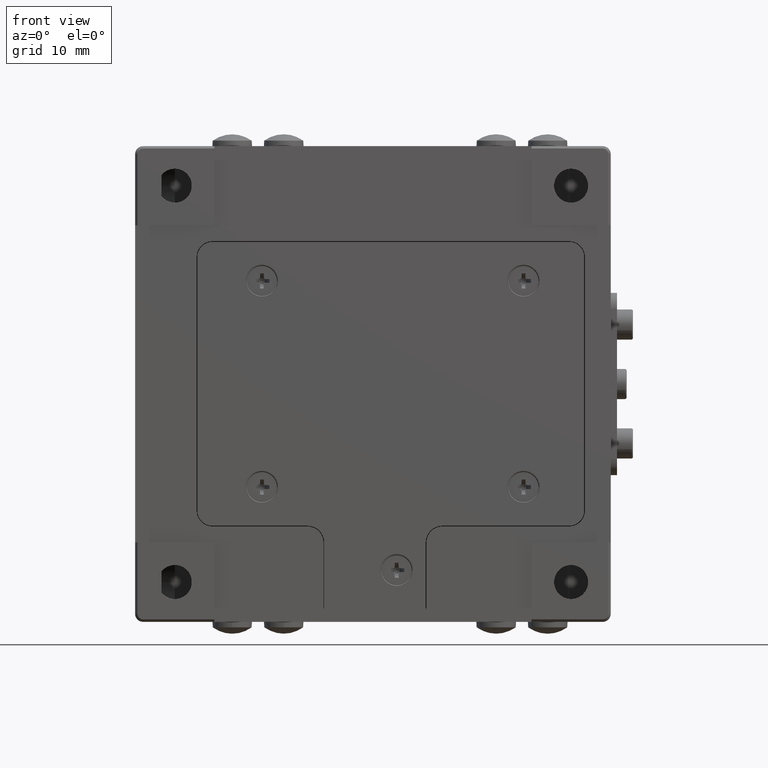
[diagram: clean part render]
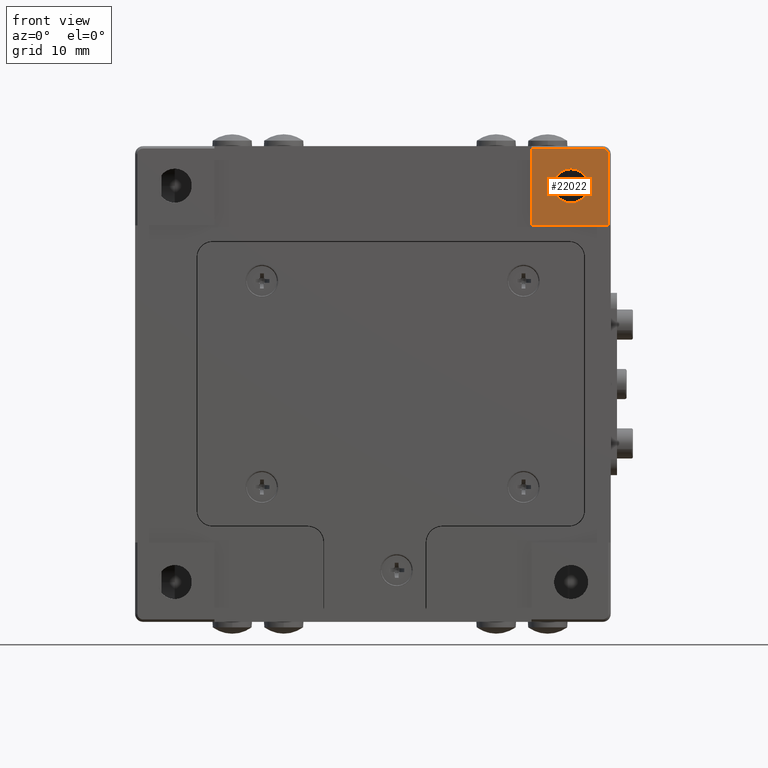
[diagram: same view with one face highlighted and labeled with its STEP entity id]
A machine part, front view. The second image highlights one B-rep face of the part: STEP entity #22022.
In plain terms, the highlighted planar face has unit normal (0, -1, 0).
Its self-contained STEP definition (entity closure, byte-faithful):
#39 = DIRECTION ( 'NONE',  ( 0.000000000000000000, 1.000000000000000000, 0.000000000000000000 ) ) ;
#133 = AXIS2_PLACEMENT_3D ( 'NONE', #21618, #13907, #17339 ) ;
#566 = AXIS2_PLACEMENT_3D ( 'NONE', #21374, #39, #21233 ) ;
#635 = AXIS2_PLACEMENT_3D ( 'NONE', #21621, #15952, #18199 ) ;
#763 = ORIENTED_EDGE ( 'NONE', *, *, #2516, .T. ) ;
#1528 = VERTEX_POINT ( 'NONE', #21754 ) ;
#1769 = VECTOR ( 'NONE', #20127, 1000.000000000000000 ) ;
#2516 = EDGE_CURVE ( 'NONE', #16499, #16038, #10389, .T. ) ;
#4974 = DIRECTION ( 'NONE',  ( 0.000000000000000000, 0.000000000000000000, -1.000000000000000000 ) ) ;
#5205 = ORIENTED_EDGE ( 'NONE', *, *, #22896, .T. ) ;
#5316 = VERTEX_POINT ( 'NONE', #14331 ) ;
#5505 = VECTOR ( 'NONE', #22134, 1000.000000000000000 ) ;
#6233 = CARTESIAN_POINT ( 'NONE',  ( 50.00000000000000000, -0.2999999999999999889, -0.2999999999999999889 ) ) ;
#7267 = CARTESIAN_POINT ( 'NONE',  ( 50.00000000000000000, -0.2999999999999999889, -1.224646799147351876E-15 ) ) ;
#7781 = EDGE_LOOP ( 'NONE', ( #20167, #17338, #763, #10455, #5205 ) ) ;
#8123 = PLANE ( 'NONE',  #635 ) ;
#8358 = AXIS2_PLACEMENT_3D ( 'NONE', #16854, #22543, #24818 ) ;
#9408 = LINE ( 'NONE', #7267, #13568 ) ;
#10389 = CIRCLE ( 'NONE', #8358, 0.7000000000000000666 ) ;
#10455 = ORIENTED_EDGE ( 'NONE', *, *, #23192, .T. ) ;
#10849 = CARTESIAN_POINT ( 'NONE',  ( 59.70000000000000284, -0.2999999999999999889, -10.00000000000000000 ) ) ;
#11151 = CARTESIAN_POINT ( 'NONE',  ( 59.70000000000000284, -0.2999999999999999889, -1.000000000000000000 ) ) ;
#11723 = EDGE_CURVE ( 'NONE', #5316, #18284, #22341, .T. ) ;
#12179 = LINE ( 'NONE', #23930, #1769 ) ;
#12371 = VERTEX_POINT ( 'NONE', #10849 ) ;
#13205 = CARTESIAN_POINT ( 'NONE',  ( 59.00000000000000000, -0.2999999999999999889, -0.2999999999999999889 ) ) ;
#13568 = VECTOR ( 'NONE', #4974, 1000.000000000000000 ) ;
#13907 = DIRECTION ( 'NONE',  ( 0.000000000000000000, 1.000000000000000000, 0.000000000000000000 ) ) ;
#14331 = CARTESIAN_POINT ( 'NONE',  ( 55.00000000000000000, -0.2999999999999999889, -2.850000000000000089 ) ) ;
#15827 = LINE ( 'NONE', #6233, #5505 ) ;
#15952 = DIRECTION ( 'NONE',  ( 0.000000000000000000, -1.000000000000000000, 0.000000000000000000 ) ) ;
#16038 = VERTEX_POINT ( 'NONE', #13205 ) ;
#16499 = VERTEX_POINT ( 'NONE', #11151 ) ;
#16801 = CARTESIAN_POINT ( 'NONE',  ( 55.00000000000000000, -0.2999999999999999889, -7.150000000000000355 ) ) ;
#16854 = CARTESIAN_POINT ( 'NONE',  ( 59.00000000000000000, -0.2999999999999999889, -1.000000000000000000 ) ) ;
#16918 = CARTESIAN_POINT ( 'NONE',  ( 50.00000000000000000, -0.2999999999999999889, -10.00000000000000000 ) ) ;
#17288 = EDGE_LOOP ( 'NONE', ( #18522, #17952 ) ) ;
#17338 = ORIENTED_EDGE ( 'NONE', *, *, #19794, .T. ) ;
#17339 = DIRECTION ( 'NONE',  ( 0.000000000000000000, 0.000000000000000000, 1.000000000000000000 ) ) ;
#17952 = ORIENTED_EDGE ( 'NONE', *, *, #19330, .T. ) ;
#18199 = DIRECTION ( 'NONE',  ( 0.000000000000000000, 0.000000000000000000, -1.000000000000000000 ) ) ;
#18284 = VERTEX_POINT ( 'NONE', #16801 ) ;
#18522 = ORIENTED_EDGE ( 'NONE', *, *, #11723, .T. ) ;
#19082 = VECTOR ( 'NONE', #23006, 1000.000000000000000 ) ;
#19325 = CARTESIAN_POINT ( 'NONE',  ( 59.70000000000000284, -0.2999999999999999889, 0.000000000000000000 ) ) ;
#19330 = EDGE_CURVE ( 'NONE', #18284, #5316, #23927, .T. ) ;
#19794 = EDGE_CURVE ( 'NONE', #12371, #16499, #23249, .T. ) ;
#19971 = FACE_OUTER_BOUND ( 'NONE', #7781, .T. ) ;
#20127 = DIRECTION ( 'NONE',  ( 1.000000000000000000, 0.000000000000000000, 0.000000000000000000 ) ) ;
#20167 = ORIENTED_EDGE ( 'NONE', *, *, #21484, .T. ) ;
#20939 = VERTEX_POINT ( 'NONE', #16918 ) ;
#21233 = DIRECTION ( 'NONE',  ( 0.000000000000000000, 0.000000000000000000, 1.000000000000000000 ) ) ;
#21374 = CARTESIAN_POINT ( 'NONE',  ( 55.00000000000000000, -0.2999999999999999889, -5.000000000000000000 ) ) ;
#21484 = EDGE_CURVE ( 'NONE', #20939, #12371, #12179, .T. ) ;
#21618 = CARTESIAN_POINT ( 'NONE',  ( 55.00000000000000000, -0.2999999999999999889, -5.000000000000000000 ) ) ;
#21621 = CARTESIAN_POINT ( 'NONE',  ( 0.000000000000000000, -0.2999999999999999889, 0.000000000000000000 ) ) ;
#21754 = CARTESIAN_POINT ( 'NONE',  ( 50.00000000000000000, -0.2999999999999999889, -0.2999999999999999889 ) ) ;
#22022 = ADVANCED_FACE ( 'NONE', ( #19971, #23524 ), #8123, .T. ) ;
#22134 = DIRECTION ( 'NONE',  ( -1.000000000000000000, 0.000000000000000000, 0.000000000000000000 ) ) ;
#22341 = CIRCLE ( 'NONE', #566, 2.149999999999999911 ) ;
#22543 = DIRECTION ( 'NONE',  ( 0.000000000000000000, -1.000000000000000000, 0.000000000000000000 ) ) ;
#22896 = EDGE_CURVE ( 'NONE', #1528, #20939, #9408, .T. ) ;
#23006 = DIRECTION ( 'NONE',  ( 0.000000000000000000, 0.000000000000000000, 1.000000000000000000 ) ) ;
#23192 = EDGE_CURVE ( 'NONE', #16038, #1528, #15827, .T. ) ;
#23249 = LINE ( 'NONE', #19325, #19082 ) ;
#23524 = FACE_BOUND ( 'NONE', #17288, .T. ) ;
#23927 = CIRCLE ( 'NONE', #133, 2.149999999999999911 ) ;
#23930 = CARTESIAN_POINT ( 'NONE',  ( 50.00000000000000000, -0.2999999999999999889, -10.00000000000000000 ) ) ;
#24818 = DIRECTION ( 'NONE',  ( 0.000000000000000000, 0.000000000000000000, -1.000000000000000000 ) ) ;